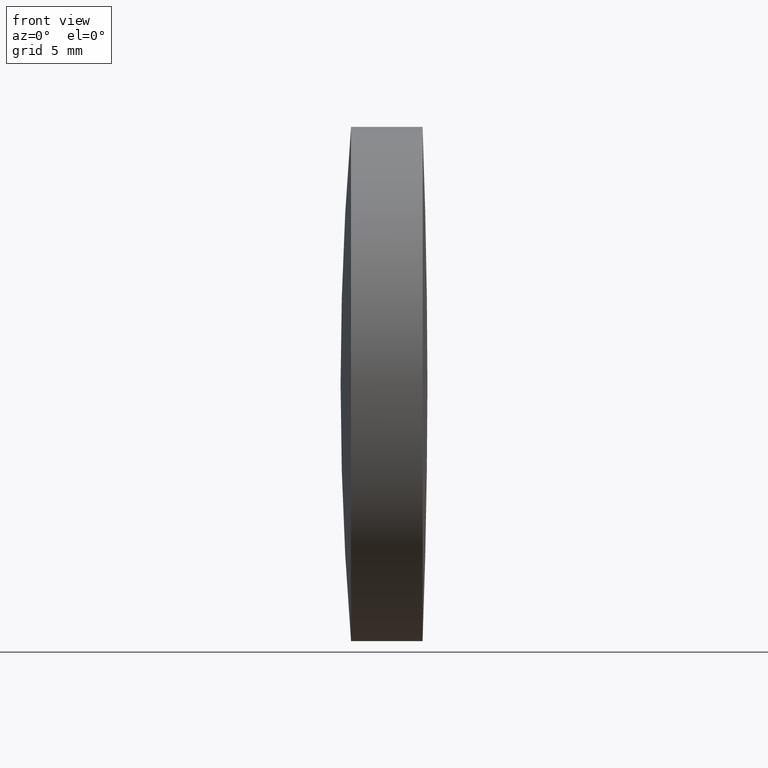
[diagram: clean part render]
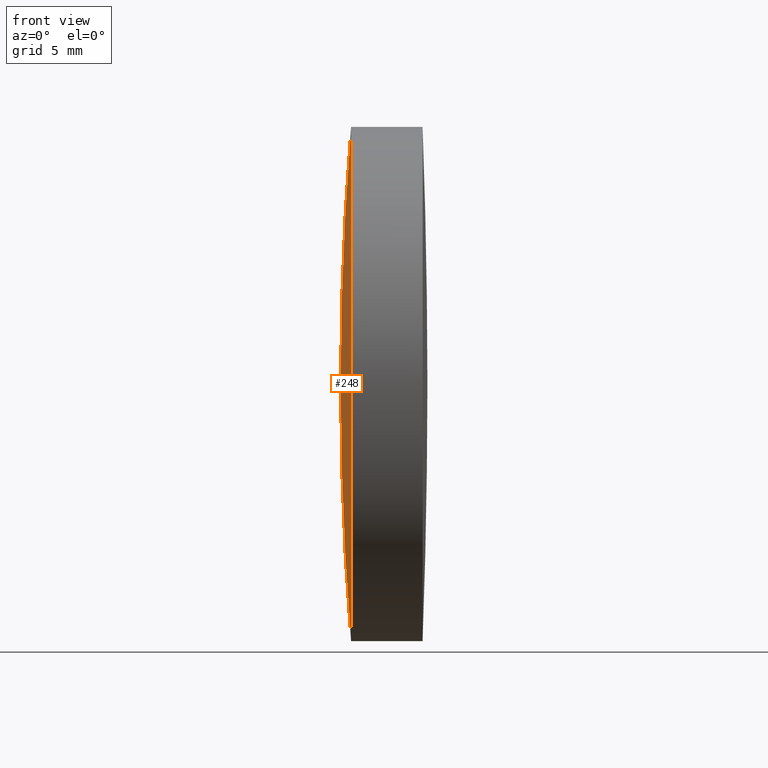
[diagram: same view with one face highlighted and labeled with its STEP entity id]
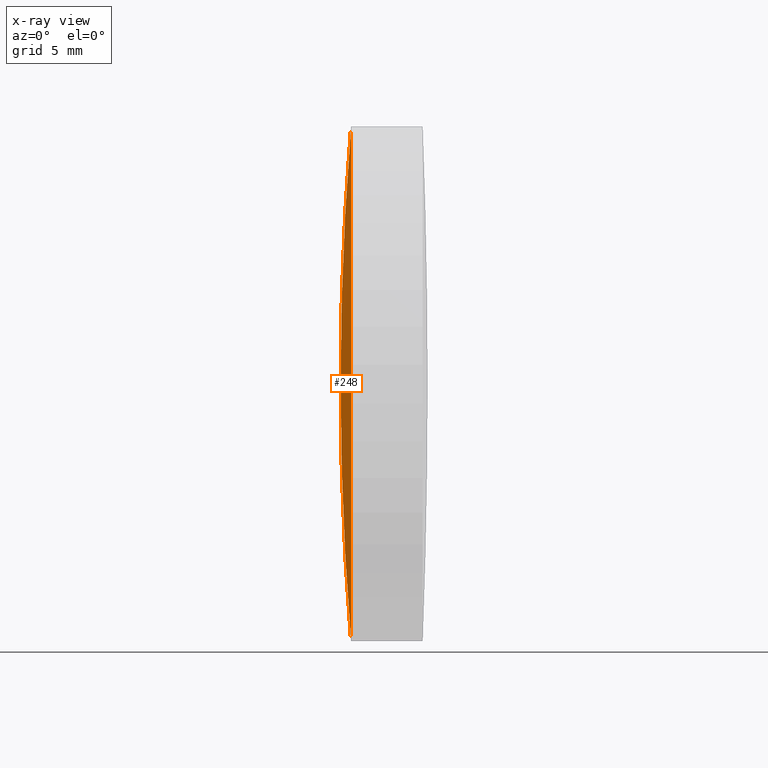
[diagram: x-ray of the same camera — body ghosted, the highlighted face saturated]
A machine part, front view. The second image highlights one B-rep face of the part: STEP entity #248.
The next image is the same camera in x-ray: the body ghosted, the highlighted face saturated — about 0% of this face is hidden behind the body in this view.
In plain terms, the highlighted spherical surface has radius 153.832 mm.
Its self-contained STEP definition (entity closure, byte-faithful):
#9 = DIRECTION ( 'NONE',  ( 0.0000000000000000000, 0.0000000000000000000, -1.000000000000000000 ) ) ;
#11 = DIRECTION ( 'NONE',  ( 0.0000000000000000000, 0.0000000000000000000, 1.000000000000000000 ) ) ;
#32 = AXIS2_PLACEMENT_3D ( 'NONE', #61, #164, #9 ) ;
#48 = DIRECTION ( 'NONE',  ( -1.000000000000000000, -0.0000000000000000000, -0.0000000000000000000 ) ) ;
#61 = CARTESIAN_POINT ( 'NONE',  ( 267.3406689735747400, 0.0000000000000000000, -9.034551352721274800E-017 ) ) ;
#66 = CARTESIAN_POINT ( 'NONE',  ( 267.3406689735747400, 0.0000000000000000000, -9.034551352721274800E-017 ) ) ;
#87 = EDGE_LOOP ( 'NONE', ( #327, #146, #290 ) ) ;
#97 = CARTESIAN_POINT ( 'NONE',  ( 267.3406689735747400, 0.0000000000000000000, -9.034551352721274800E-017 ) ) ;
#114 = DIRECTION ( 'NONE',  ( 0.0000000000000000000, -1.224646799147353500E-016, 1.000000000000000000 ) ) ;
#128 = CIRCLE ( 'NONE', #161, 153.8320000000000200 ) ;
#131 = EDGE_CURVE ( 'NONE', #343, #228, #207, .T. ) ;
#146 = ORIENTED_EDGE ( 'NONE', *, *, #131, .T. ) ;
#161 = AXIS2_PLACEMENT_3D ( 'NONE', #97, #168, #114 ) ;
#163 = SPHERICAL_SURFACE ( 'NONE', #238, 153.8320000000000200 ) ;
#164 = DIRECTION ( 'NONE',  ( 0.0000000000000000000, -1.000000000000000000, 0.0000000000000000000 ) ) ;
#168 = DIRECTION ( 'NONE',  ( -0.0000000000000000000, 1.000000000000000000, 1.224646799147353200E-016 ) ) ;
#186 = CARTESIAN_POINT ( 'NONE',  ( 114.0173692960632100, 1.530808498934200400E-015, -12.50000000000007300 ) ) ;
#199 = CARTESIAN_POINT ( 'NONE',  ( 114.0173692960632100, 0.0000000000000000000, 0.0000000000000000000 ) ) ;
#206 = EDGE_CURVE ( 'NONE', #228, #329, #242, .T. ) ;
#207 = CIRCLE ( 'NONE', #293, 12.50000000000000000 ) ;
#223 = DIRECTION ( 'NONE',  ( 0.0000000000000000000, 0.0000000000000000000, 1.000000000000000000 ) ) ;
#228 = VERTEX_POINT ( 'NONE', #269 ) ;
#232 = EDGE_CURVE ( 'NONE', #343, #329, #128, .T. ) ;
#238 = AXIS2_PLACEMENT_3D ( 'NONE', #66, #249, #11 ) ;
#242 = CIRCLE ( 'NONE', #32, 153.8320000000000200 ) ;
#248 = ADVANCED_FACE ( 'NONE', ( #307 ), #163, .T. ) ;
#249 = DIRECTION ( 'NONE',  ( 0.0000000000000000000, 1.000000000000000000, 0.0000000000000000000 ) ) ;
#269 = CARTESIAN_POINT ( 'NONE',  ( 114.0173692960632100, 0.0000000000000000000, 12.50000000000007300 ) ) ;
#282 = CARTESIAN_POINT ( 'NONE',  ( 113.5086689735747000, 0.0000000000000000000, 9.329147806794571100E-015 ) ) ;
#290 = ORIENTED_EDGE ( 'NONE', *, *, #206, .T. ) ;
#293 = AXIS2_PLACEMENT_3D ( 'NONE', #199, #48, #223 ) ;
#307 = FACE_OUTER_BOUND ( 'NONE', #87, .T. ) ;
#327 = ORIENTED_EDGE ( 'NONE', *, *, #232, .F. ) ;
#329 = VERTEX_POINT ( 'NONE', #282 ) ;
#343 = VERTEX_POINT ( 'NONE', #186 ) ;